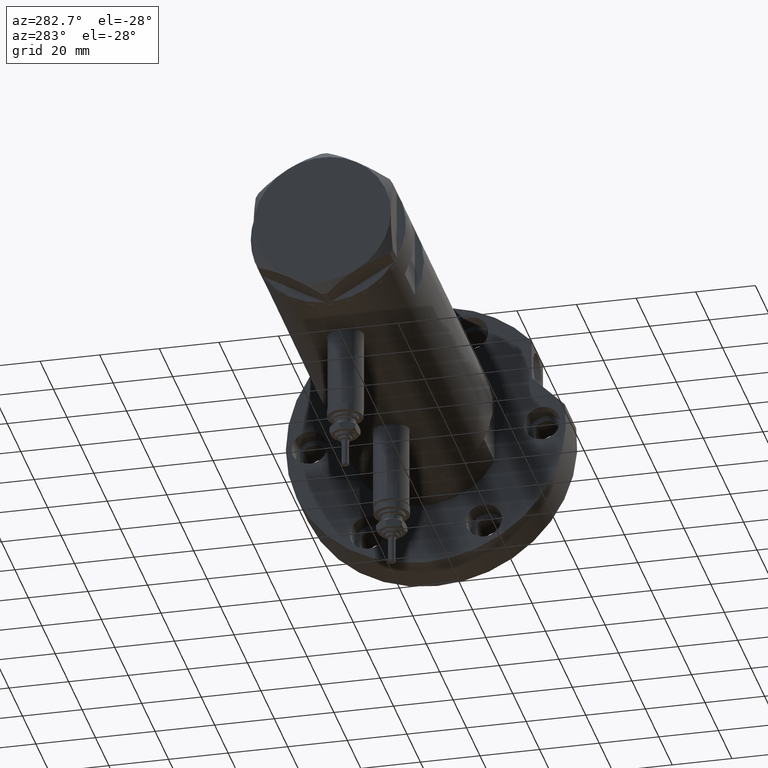
[diagram: clean part render]
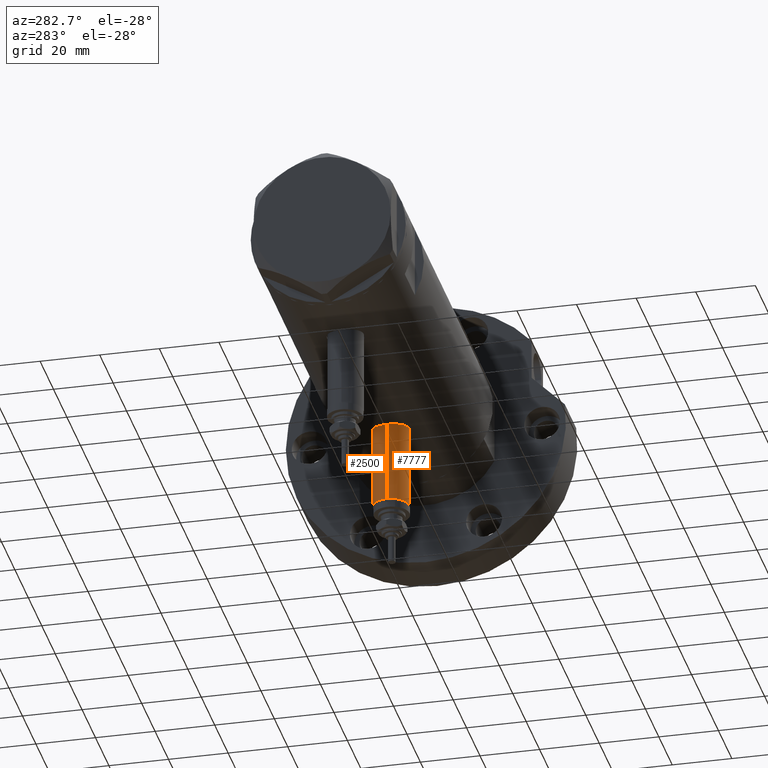
[diagram: same view with one multi-face feature highlighted, each face labeled with its STEP entity id]
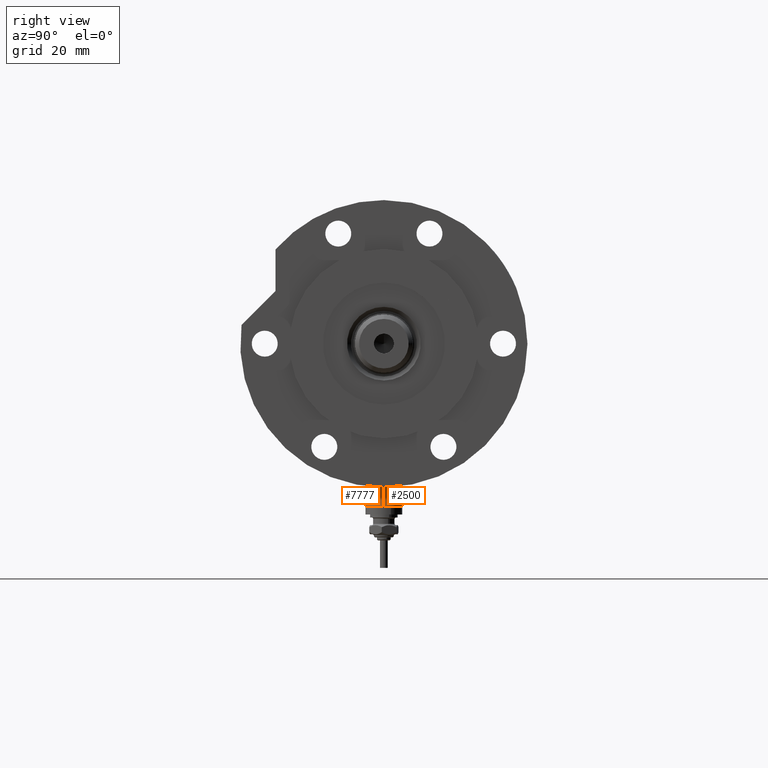
[diagram: same view with one multi-face feature highlighted, each face labeled with its STEP entity id]
A machine part, auxiliary view. The highlighted faces form ONE feature: a constant-radius fillet chain: 2 tangent blend faces with common blend radius 6 mm. The faces share edges in the B-rep.
A second angle (right view) of the same feature is appended — it is thin or edge-on in the first view.
Their STEP definitions:
[1] entity #7777 (Cylinder):
#64 = EDGE_CURVE ( 'NONE', #5867, #2390, #1483, .T. ) ;
#258 = VECTOR ( 'NONE', #7927, 1000.000000000000000 ) ;
#266 = CARTESIAN_POINT ( 'NONE',  ( -53.40000000000000568, 0.000000000000000000, -27.65000000000000924 ) ) ;
#323 = DIRECTION ( 'NONE',  ( 0.000000000000000000, 0.000000000000000000, 1.000000000000000000 ) ) ;
#449 = EDGE_LOOP ( 'NONE', ( #7155, #3874, #5989, #3997 ) ) ;
#498 = AXIS2_PLACEMENT_3D ( 'NONE', #266, #2723, #2171 ) ;
#871 = CARTESIAN_POINT ( 'NONE',  ( -24.80000000000000426, 7.347880794884123680E-16, -21.65000000000000213 ) ) ;
#885 = CIRCLE ( 'NONE', #498, 6.000000000000001776 ) ;
#1008 = VERTEX_POINT ( 'NONE', #7744 ) ;
#1483 = LINE ( 'NONE', #3039, #5084 ) ;
#2171 = DIRECTION ( 'NONE',  ( 0.000000000000000000, 0.000000000000000000, 1.000000000000000000 ) ) ;
#2328 = CIRCLE ( 'NONE', #6394, 6.000000000000001776 ) ;
#2390 = VERTEX_POINT ( 'NONE', #871 ) ;
#2723 = DIRECTION ( 'NONE',  ( -1.000000000000000000, 0.000000000000000000, 0.000000000000000000 ) ) ;
#3039 = CARTESIAN_POINT ( 'NONE',  ( -53.40000000000000568, 7.347880794884122694E-16, -21.65000000000000568 ) ) ;
#3762 = CARTESIAN_POINT ( 'NONE',  ( -53.40000000000000568, 0.000000000000000000, -27.65000000000000924 ) ) ;
#3874 = ORIENTED_EDGE ( 'NONE', *, *, #4644, .F. ) ;
#3997 = ORIENTED_EDGE ( 'NONE', *, *, #7189, .T. ) ;
#4644 = EDGE_CURVE ( 'NONE', #5940, #5867, #885, .T. ) ;
#4864 = CARTESIAN_POINT ( 'NONE',  ( -53.40000000000000568, 0.000000000000000000, -33.65000000000001279 ) ) ;
#5084 = VECTOR ( 'NONE', #6688, 1000.000000000000000 ) ;
#5099 = EDGE_CURVE ( 'NONE', #5940, #1008, #6660, .T. ) ;
#5318 = CARTESIAN_POINT ( 'NONE',  ( -24.80000000000000426, 0.000000000000000000, -27.65000000000000924 ) ) ;
#5597 = DIRECTION ( 'NONE',  ( 1.000000000000000000, -0.000000000000000000, -0.000000000000000000 ) ) ;
#5730 = DIRECTION ( 'NONE',  ( -1.000000000000000000, 0.000000000000000000, 0.000000000000000000 ) ) ;
#5867 = VERTEX_POINT ( 'NONE', #7549 ) ;
#5940 = VERTEX_POINT ( 'NONE', #6055 ) ;
#5989 = ORIENTED_EDGE ( 'NONE', *, *, #5099, .T. ) ;
#6055 = CARTESIAN_POINT ( 'NONE',  ( -53.40000000000000568, 0.000000000000000000, -33.65000000000001279 ) ) ;
#6279 = DIRECTION ( 'NONE',  ( 0.000000000000000000, 0.000000000000000000, -1.000000000000000000 ) ) ;
#6394 = AXIS2_PLACEMENT_3D ( 'NONE', #5318, #5730, #323 ) ;
#6660 = LINE ( 'NONE', #4864, #258 ) ;
#6688 = DIRECTION ( 'NONE',  ( 1.000000000000000000, -0.000000000000000000, -0.000000000000000000 ) ) ;
#6764 = CYLINDRICAL_SURFACE ( 'NONE', #7062, 6.000000000000005329 ) ;
#6847 = FACE_OUTER_BOUND ( 'NONE', #449, .T. ) ;
#7062 = AXIS2_PLACEMENT_3D ( 'NONE', #3762, #5597, #6279 ) ;
#7155 = ORIENTED_EDGE ( 'NONE', *, *, #64, .F. ) ;
#7189 = EDGE_CURVE ( 'NONE', #1008, #2390, #2328, .T. ) ;
#7549 = CARTESIAN_POINT ( 'NONE',  ( -53.40000000000000568, 7.347880794884123680E-16, -21.65000000000000213 ) ) ;
#7744 = CARTESIAN_POINT ( 'NONE',  ( -24.80000000000000426, 0.000000000000000000, -33.65000000000001279 ) ) ;
#7777 = ADVANCED_FACE ( 'NONE', ( #6847 ), #6764, .T. ) ;
#7927 = DIRECTION ( 'NONE',  ( 1.000000000000000000, -0.000000000000000000, -0.000000000000000000 ) ) ;
[2] entity #2500 (Cylinder):
#64 = EDGE_CURVE ( 'NONE', #5867, #2390, #1483, .T. ) ;
#258 = VECTOR ( 'NONE', #7927, 1000.000000000000000 ) ;
#361 = DIRECTION ( 'NONE',  ( 0.000000000000000000, 0.000000000000000000, -1.000000000000000000 ) ) ;
#635 = EDGE_CURVE ( 'NONE', #2390, #1008, #6223, .T. ) ;
#871 = CARTESIAN_POINT ( 'NONE',  ( -24.80000000000000426, 7.347880794884123680E-16, -21.65000000000000213 ) ) ;
#1008 = VERTEX_POINT ( 'NONE', #7744 ) ;
#1163 = DIRECTION ( 'NONE',  ( 0.000000000000000000, 0.000000000000000000, 1.000000000000000000 ) ) ;
#1483 = LINE ( 'NONE', #3039, #5084 ) ;
#1698 = FACE_OUTER_BOUND ( 'NONE', #7356, .T. ) ;
#1893 = EDGE_CURVE ( 'NONE', #5867, #5940, #5203, .T. ) ;
#2061 = CARTESIAN_POINT ( 'NONE',  ( -53.40000000000000568, 0.000000000000000000, -27.65000000000000924 ) ) ;
#2134 = ORIENTED_EDGE ( 'NONE', *, *, #64, .T. ) ;
#2269 = CARTESIAN_POINT ( 'NONE',  ( -24.80000000000000426, 0.000000000000000000, -27.65000000000000924 ) ) ;
#2390 = VERTEX_POINT ( 'NONE', #871 ) ;
#2500 = ADVANCED_FACE ( 'NONE', ( #1698 ), #3514, .T. ) ;
#2652 = DIRECTION ( 'NONE',  ( -1.000000000000000000, 0.000000000000000000, 0.000000000000000000 ) ) ;
#3039 = CARTESIAN_POINT ( 'NONE',  ( -53.40000000000000568, 7.347880794884122694E-16, -21.65000000000000568 ) ) ;
#3182 = ORIENTED_EDGE ( 'NONE', *, *, #1893, .F. ) ;
#3514 = CYLINDRICAL_SURFACE ( 'NONE', #5322, 6.000000000000005329 ) ;
#4159 = ORIENTED_EDGE ( 'NONE', *, *, #635, .T. ) ;
#4732 = DIRECTION ( 'NONE',  ( -1.000000000000000000, 0.000000000000000000, 0.000000000000000000 ) ) ;
#4864 = CARTESIAN_POINT ( 'NONE',  ( -53.40000000000000568, 0.000000000000000000, -33.65000000000001279 ) ) ;
#5084 = VECTOR ( 'NONE', #6688, 1000.000000000000000 ) ;
#5099 = EDGE_CURVE ( 'NONE', #5940, #1008, #6660, .T. ) ;
#5203 = CIRCLE ( 'NONE', #7397, 6.000000000000001776 ) ;
#5322 = AXIS2_PLACEMENT_3D ( 'NONE', #7753, #5879, #361 ) ;
#5699 = AXIS2_PLACEMENT_3D ( 'NONE', #2269, #4732, #1163 ) ;
#5867 = VERTEX_POINT ( 'NONE', #7549 ) ;
#5879 = DIRECTION ( 'NONE',  ( 1.000000000000000000, -0.000000000000000000, -0.000000000000000000 ) ) ;
#5940 = VERTEX_POINT ( 'NONE', #6055 ) ;
#6055 = CARTESIAN_POINT ( 'NONE',  ( -53.40000000000000568, 0.000000000000000000, -33.65000000000001279 ) ) ;
#6133 = ORIENTED_EDGE ( 'NONE', *, *, #5099, .F. ) ;
#6223 = CIRCLE ( 'NONE', #5699, 6.000000000000001776 ) ;
#6230 = DIRECTION ( 'NONE',  ( 0.000000000000000000, 0.000000000000000000, 1.000000000000000000 ) ) ;
#6660 = LINE ( 'NONE', #4864, #258 ) ;
#6688 = DIRECTION ( 'NONE',  ( 1.000000000000000000, -0.000000000000000000, -0.000000000000000000 ) ) ;
#7356 = EDGE_LOOP ( 'NONE', ( #3182, #2134, #4159, #6133 ) ) ;
#7397 = AXIS2_PLACEMENT_3D ( 'NONE', #2061, #2652, #6230 ) ;
#7549 = CARTESIAN_POINT ( 'NONE',  ( -53.40000000000000568, 7.347880794884123680E-16, -21.65000000000000213 ) ) ;
#7744 = CARTESIAN_POINT ( 'NONE',  ( -24.80000000000000426, 0.000000000000000000, -33.65000000000001279 ) ) ;
#7753 = CARTESIAN_POINT ( 'NONE',  ( -53.40000000000000568, 0.000000000000000000, -27.65000000000000924 ) ) ;
#7927 = DIRECTION ( 'NONE',  ( 1.000000000000000000, -0.000000000000000000, -0.000000000000000000 ) ) ;